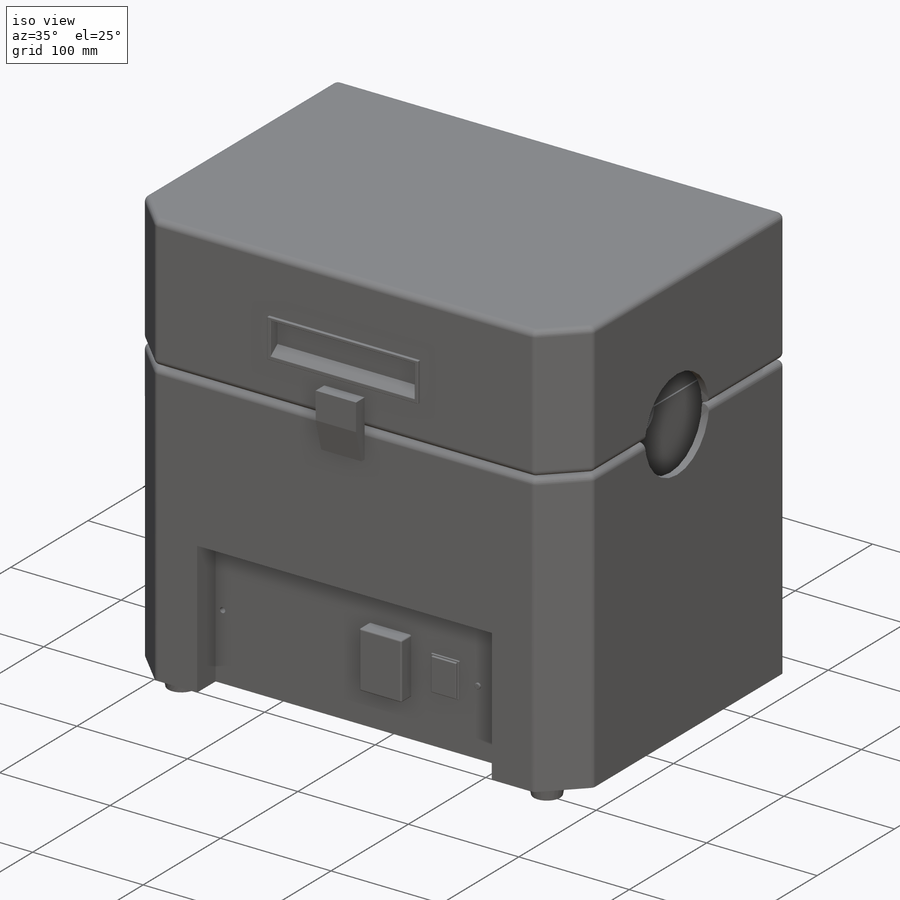
[diagram: iso view]
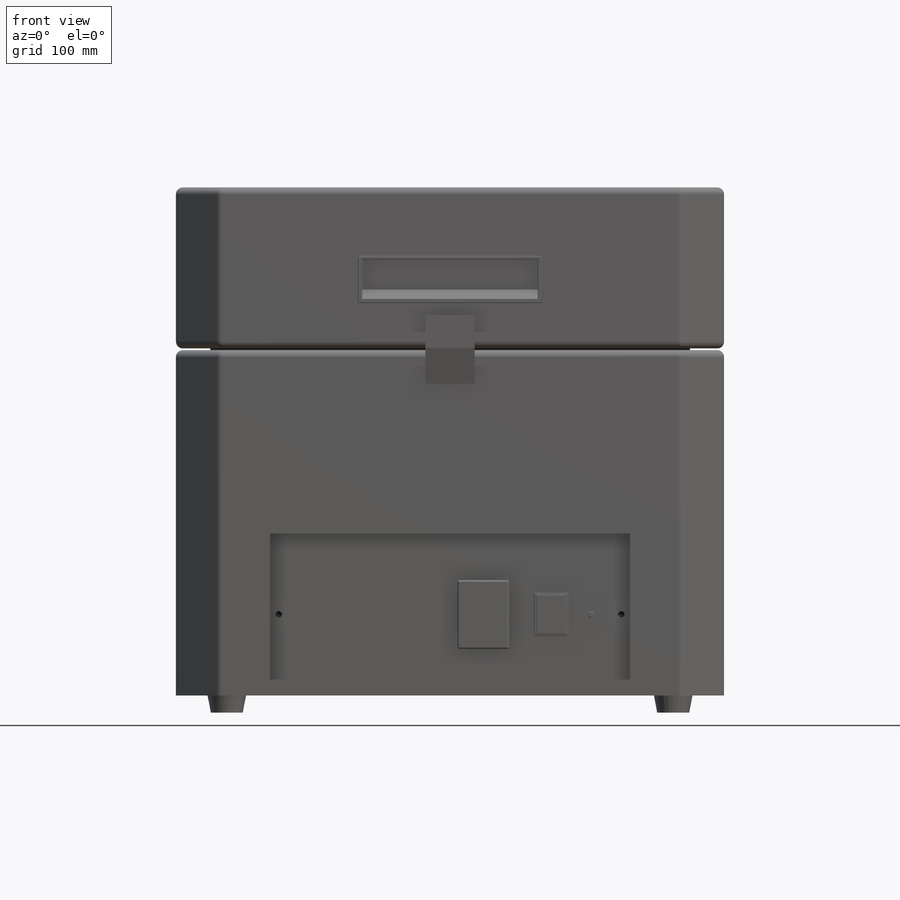
[diagram: front view]
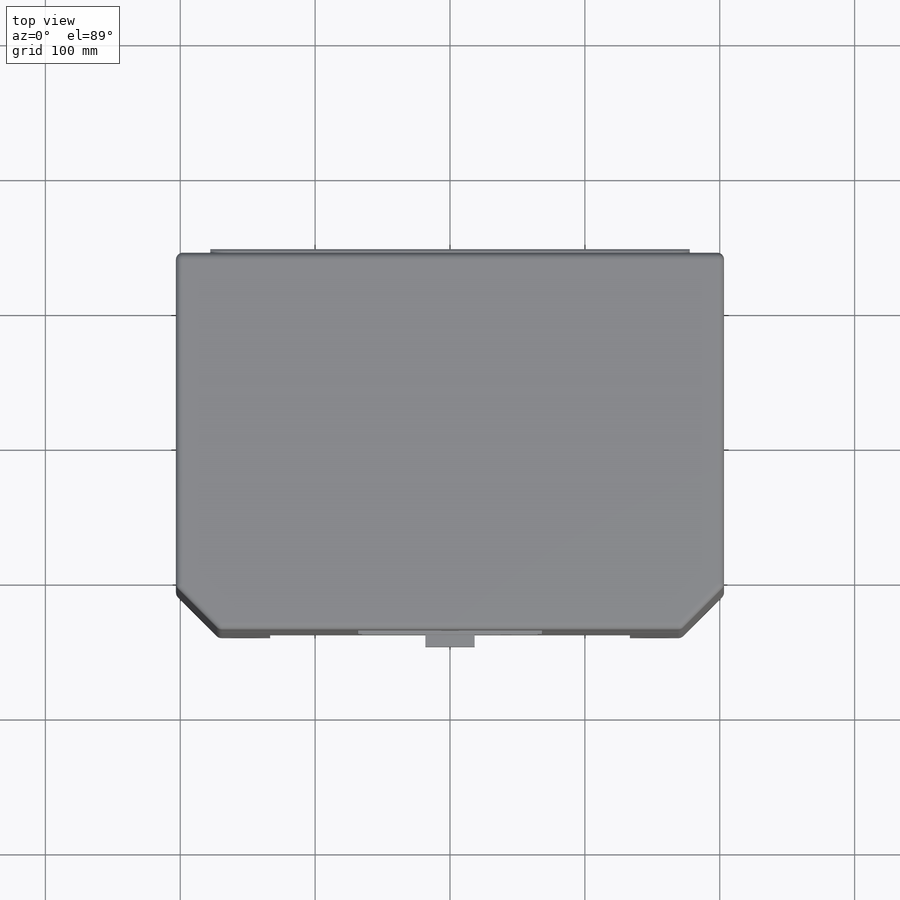
[diagram: top view]
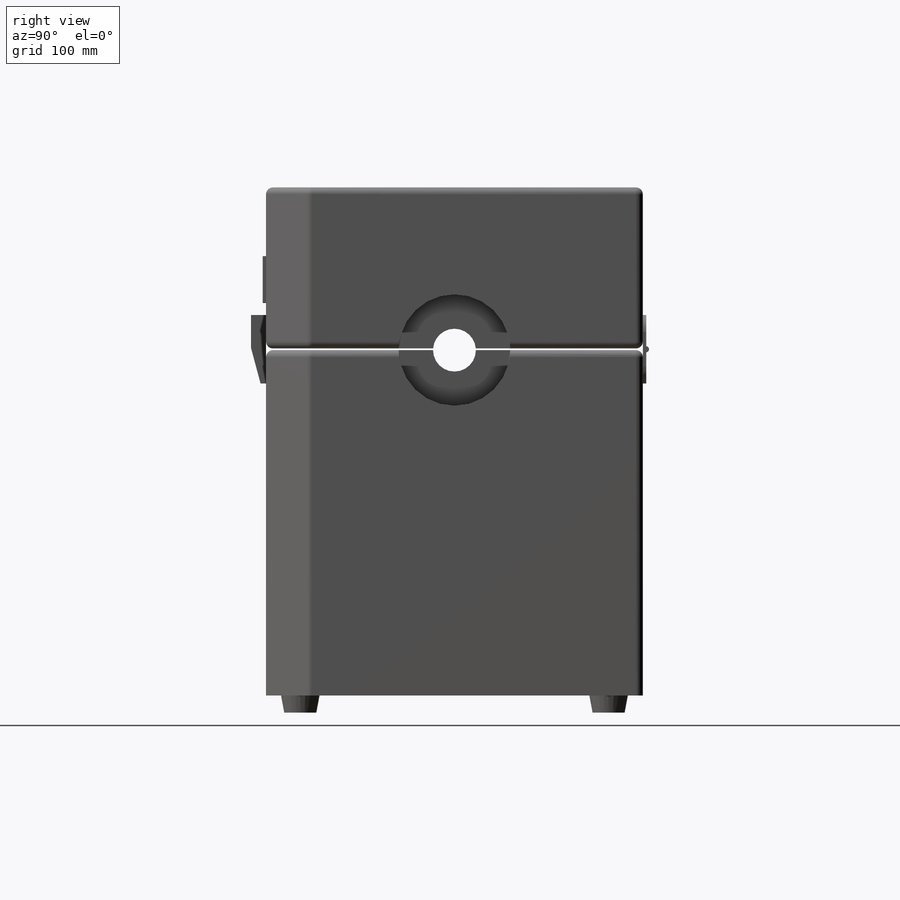
[diagram: right view]
SOLIDWORKS PART (.sldprt)
format: sldprt  version: not decoded by parser v0  size: 1,022,464 bytes
history: native  units: mm
features: sketch x32, extrude x11, fillet x11, cut_extrude x6, plane x4, hole x2, material x1, mirror x1, chamfer x1 (+13 scaffold rows collapsed)
feature tree (82):
  scaffold x13  (default folders/planes/origin — collapsed)
  material  "材质 <未指定>"
  sketch  "Sketch1"  dims[D1=406.4mm D2=279.4mm]
  extrude  "Boss-Extrude1"  Depth=376.666723mm
  sketch  "Sketch3"  dims[c1.D1=31.75mm c1.D2=31.75mm c1.D3=31.75mm c2.D1=31.75mm c2.D2=31.75mm c2.D3=31.75mm c2.D4=31.75mm]
  cut_extrude  "Cut-Extrude1"  [1 undecoded]
  sketch  "Sketch4"  dims[D1=266.7mm D2=120.015mm]
  cut_extrude  "Cut-Extrude2"  Depth=23.8125mm
  sketch  "Sketch5"  dims[D1=82.55mm D2=120.65mm]
  cut_extrude  "Cut-Extrude3"  Depth=6.35mm
  mirror  "Mirror1"
  sketch  "Sketch6"
  cut_extrude  "Cut-Extrude4"  [1 undecoded]
  plane  "Plane1"  Offset=25.4mm
  plane  "Plane2"  Offset=25.4mm
  sketch  "Sketch7"
  extrude  "Boss-Extrude3"  [1 undecoded]
  sketch  "Sketch8"  dims[D1=31.75mm]
  cut_extrude  "Cut-Extrude5"  [1 undecoded]
  sketch  "Sketch9"  dims[D1=1.27mm D2=119.38mm]
  cut_extrude  "Cut-Extrude6"  [1 undecoded]
  fillet  "Fillet1"  Radius=5.08mm
  fillet  "Fillet2"  Radius=5.08mm
  fillet  "Fillet3"  Radius=5.08mm
  sketch  "Sketch10"  dims[D1=28.575mm D2=330.9874mm D3=330.9874mm D4=25.4mm D5=25.4mm]
  plane  "Plane3"  Offset=12.7mm
  sketch  "Sketch11"  dims[D5=23.8125mm D1=0.0mm D2=0.0mm D3=0.0mm D4=0.0mm]
  sketch  "Sketch10<4>"
  sketch  "Sketch11<4>"
  sketch  "Sketch10<5>"
  sketch  "Sketch11<5>"
  sketch  "Sketch10<6>"
  sketch  "Sketch11<6>"
  sketch  "Sketch12"  dims[D1=36.5125mm D2=50.8mm]
  extrude  "Boss-Extrude4"  Depth=11.176mm
  chamfer  "Chamfer1"  Distance=7.112mm Angle=75deg
  sketch  "Sketch14"  dims[D1=355.6mm D2=50.8mm]
  extrude  "Boss-Extrude5"  Depth=2.54mm
  fillet  "Fillet4"  Radius=12.7mm
  sketch  "Sketch15"  dims[D1=4.572mm]
  extrude  "Boss-Extrude6"  [1 undecoded]
  sketch  "Sketch16"  dims[D2=50.8mm D3=50.8mm D1=6.0]
  hole  "3/16 (0.1875) Diameter Hole1"  Diameter=4.7625mm Depth=25.4mm
  sketch  "Sketch18"
  sketch  "Sketch17"  dims[hole-wizard template sketch: 34 standard entries collapsed; hole parameters kept: c6.Hole Dia.=4.7625mm c6.Hole Depth=25.4mm c7.D3=~14.816244mm]
  sketch  "Sketch19"  dims[D1=136.525mm D2=34.925mm D3=50.8mm]
  extrude  "Boss-Extrude7"  Depth=2.54mm
  sketch  "Sketch21"  dims[D1=3.175mm]
  plane  "Plane4"  Offset=6.35mm
  sketch  "Sketch22"
  fillet  "Fillet5"  Radius=0.508mm
  sketch  "Sketch23"  dims[D3=5.08mm D1=6.35mm D2=6.35mm]
  hole  "3/16 (0.1875) Diameter Hole2"  Diameter=4.7625mm Depth=25.4mm
  sketch  "Sketch25"
  sketch  "Sketch24"  dims[hole-wizard template sketch: 34 standard entries collapsed; hole parameters kept: c6.Hole Dia.=4.7625mm c6.Hole Depth=25.4mm c7.D3=~14.816244mm]
  fillet  "Fillet6"  Radius=5.08mm
  extrude  "Boss-Extrude9"  Depth=1.27mm
  sketch  "Sketch26"
  extrude  "Boss-Extrude10"  Depth=0.254mm
  fillet  "Fillet8"  Radius=0.254mm
  sketch  "Sketch27"  dims[c1.D1=~16.401609mm c2.D1=31.75mm c2.D2=25.4mm]
  extrude  "Boss-Extrude11"  Depth=1.27mm
  sketch  "Sketch28"  dims[D1=22.225mm D2=29.21mm]
  extrude  "Boss-Extrude12"  Depth=1.905mm
  sketch  "Sketch29"  dims[D1=38.1mm D2=50.8mm]
  extrude  "Boss-Extrude13"  Depth=12.7mm
  fillet  "Fillet9"  Radius=0.254mm
  fillet  "Fillet11"  Radius=0.508mm
  fillet  "Fillet12"  Radius=0.508mm
  fillet  "Fillet13"  Radius=1.27mm
decode coverage: 45 of 64 modeling features carry decoded parameters
note: ~ marks probable driven/reference dimensions
note: 6 parameter values undecoded
summary: no parameter record found for 6 features
note: suppression state not decoded; provenance and decode notes live in map.json
